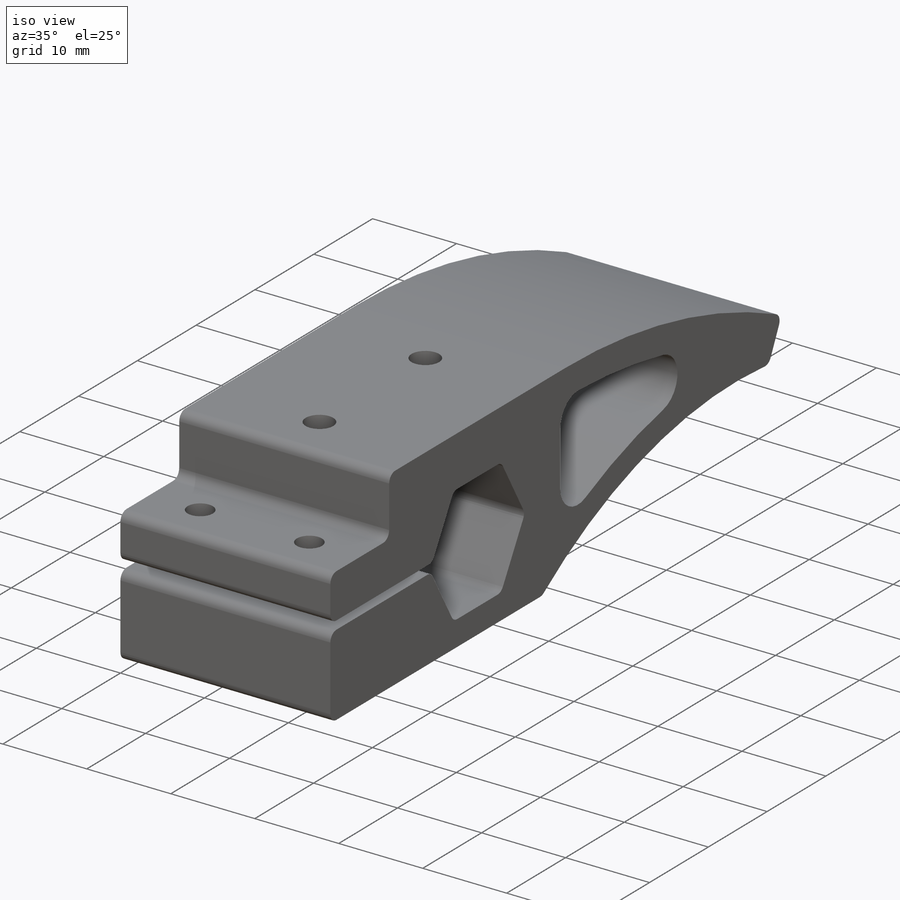
[diagram: iso view]
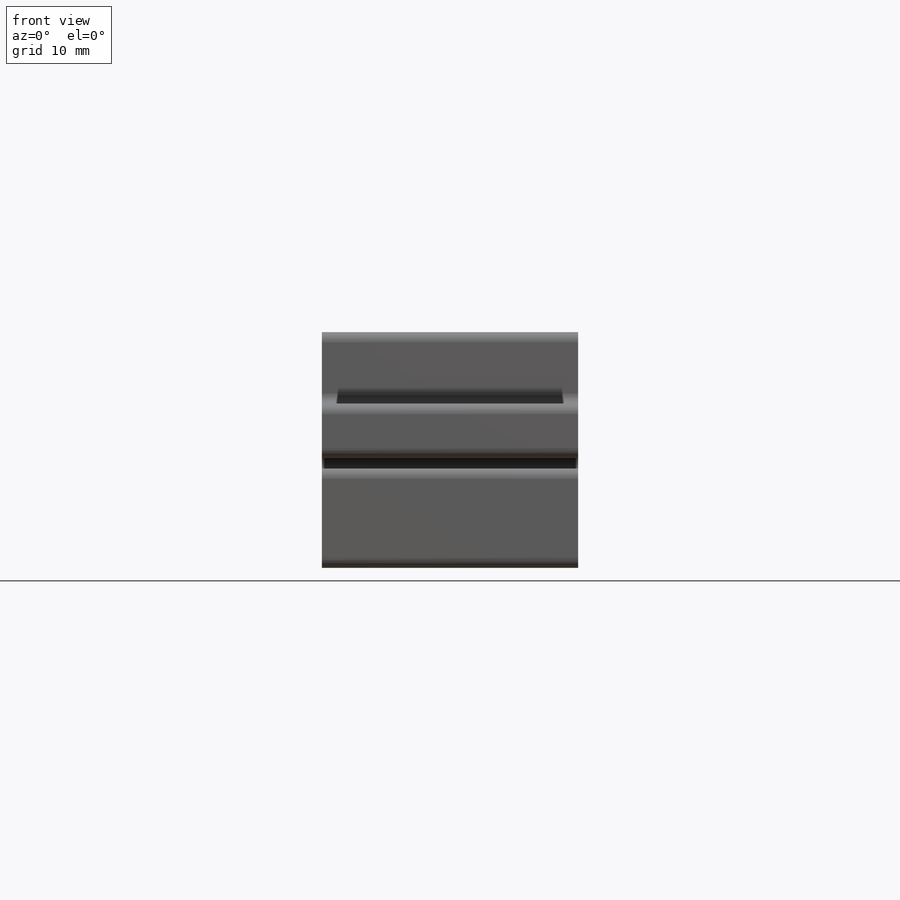
[diagram: front view]
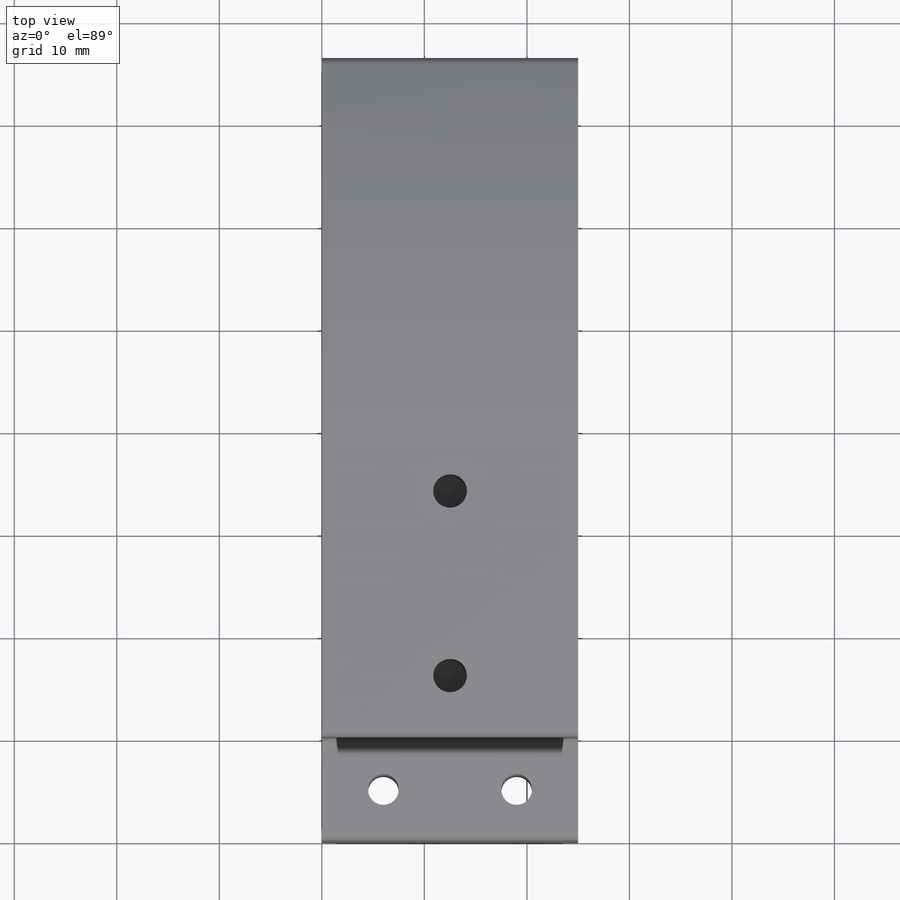
[diagram: top view]
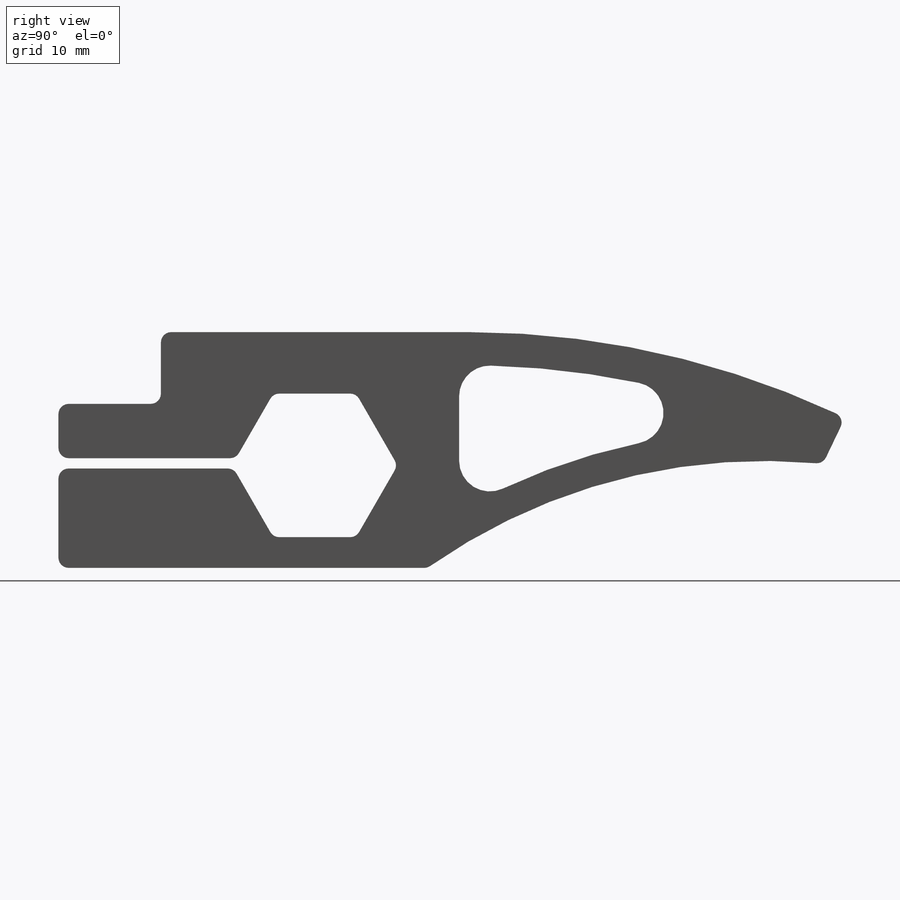
[diagram: right view]
SOLIDWORKS PART (.sldprt)
format: sldprt  version: not decoded by parser v0  size: 352,768 bytes
history: native  units: mm
features: sketch x5, hole x2, thread x2, material x1, extrude x1, fillet x1 (+12 scaffold rows collapsed)
feature tree (24):
  scaffold x12  (default folders/planes/origin — collapsed)
  material  "2014 Alloy"
  sketch  "Sketch1"  dims[c1.D1=14.0mm c1.D4=~141.010547mm c1.D5=185.0mm c1.D7=~96.443095mm c2.D1=170.0mm c2.D5=89.0mm c2.D6=89.0mm c2.D11=53.0mm c2.D14=84.0mm c2.D13=55.0mm c3.D14=3.0mm c3.D15=14.0mm c3.D16=~16.583405mm c3.D17=53.0mm c3.D8=3.0mm c3.D11=86.0mm c3.D13=~60.231088mm c3.D18=57.0mm c3.D1=~4.777585mm c3.D2=2.0mm c3.D3=2.0mm c3.D4=0.0mm c3.D6=0.0mm c4.D2=30.0mm c4.D3=7.0mm c4.D4=10.0mm c4.D5=5.0mm c4.D7=2.0mm c4.D8=13.0mm c4.D9=15.0mm c4.D10=6.0mm c5.D7=3.0mm c5.D10=9.7mm c5.D12=36.0mm c5.D13=~7.736494mm c5.D14=~2.75468mm c5.D15=~33.296832mm c5.D16=1.0mm c5.D17=~2.939752mm c5.D18=~3.736962mm c6.D18=~18.241558deg c7.D18=~3.736962mm c7.D8=~5.025983mm c7.D11=3.0mm c7.D13=3.0mm c7.D14=6.0mm c7.D17=16.0mm c8.D13=5.0mm c8.D8=3.0mm]
  extrude  "Boss-Extrude1"  Depth=25mm
  fillet  "Fillet1"  Radius=1mm
  hole  "Ø3.0mm Dowel Hole1"  Diameter=3mm Depth=16mm
  sketch  "Sketch3"  dims[D1=6.0mm D2=6.0mm D3=5.0mm]
  sketch  "Sketch4"  dims[hole-wizard template sketch: 60 standard entries collapsed; hole parameters kept: c18.Thru Hole Depth=16.0mm]
  hole  "M4 Tapped Hole1"  Diameter=3.3mm Depth=10.1mm
  sketch  "Sketch6"  dims[D1=12.5mm D2=6.0mm D3=18.0mm]
  sketch  "Sketch7"  dims[hole-wizard template sketch: 50 standard entries collapsed; hole parameters above]
  thread  "Hole Thread1"  Diameter=8mm  [1 undecoded]
  thread  "Hole Thread3"  Diameter=8mm  [1 undecoded]
decode coverage: 11 of 11 modeling features carry decoded parameters
note: ~ marks probable driven/reference dimensions
note: 2 parameter values undecoded
note: suppression state not decoded; provenance and decode notes live in map.json
